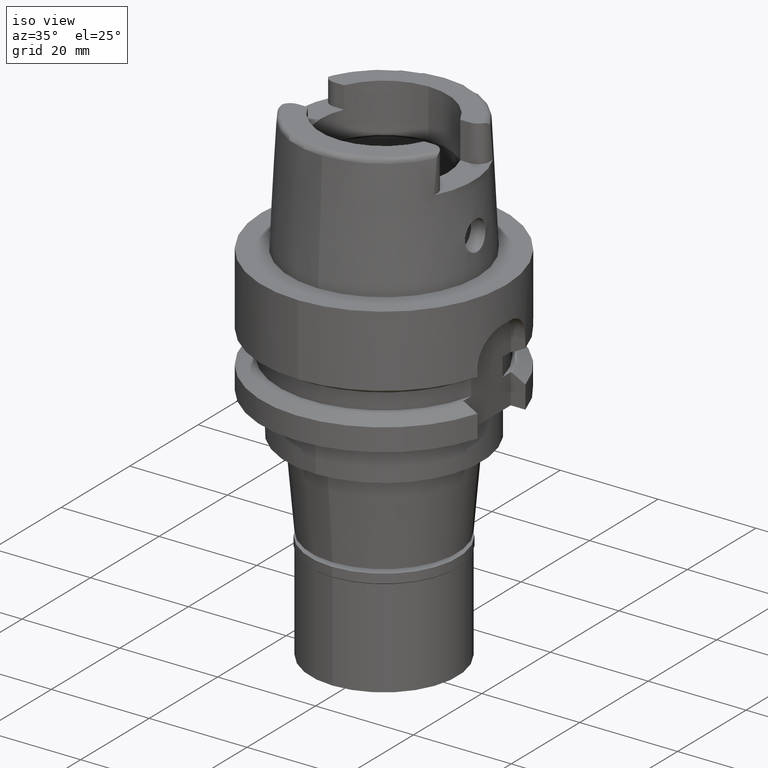
[diagram: clean part render]
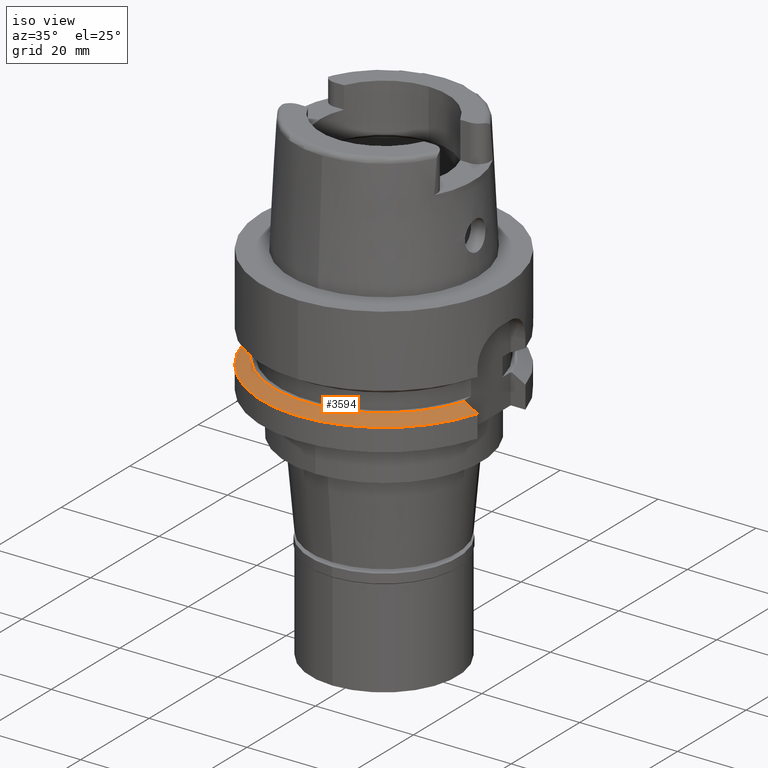
[diagram: same view with one face highlighted and labeled with its STEP entity id]
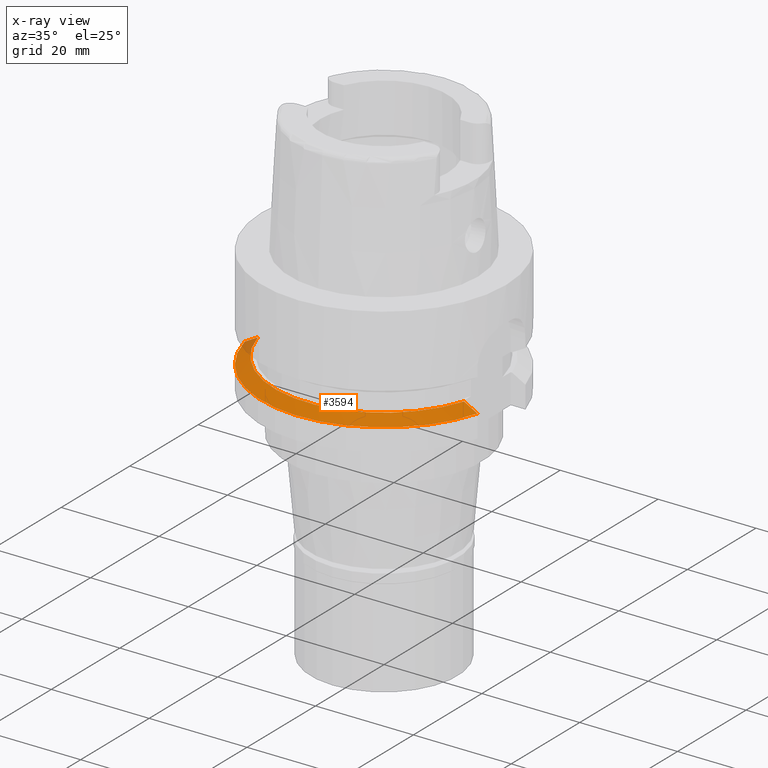
[diagram: x-ray of the same camera — body ghosted, the highlighted face saturated]
A machine part, iso view. The second image highlights one B-rep face of the part: STEP entity #3594.
The next image is the same camera in x-ray: the body ghosted, the highlighted face saturated — about 3% of this face is hidden behind the body in this view.
In plain terms, the highlighted conical surface has half-angle 60 deg.
Its self-contained STEP definition (entity closure, byte-faithful):
#253 = CARTESIAN_POINT ( 'NONE',  ( -24.26932203504999919, -6.000000663250999899, -21.37750544506000239 ) ) ;
#392 = FACE_OUTER_BOUND ( 'NONE', #5372, .T. ) ;
#449 = CARTESIAN_POINT ( 'NONE',  ( 0.0000000000000000000, 0.0000000000000000000, -20.62624953738000144 ) ) ;
#582 = ORIENTED_EDGE ( 'NONE', *, *, #2476, .T. ) ;
#670 = CARTESIAN_POINT ( 'NONE',  ( -23.32437824998604725, -6.000001326012642799, -20.84788086845616562 ) ) ;
#966 = VERTEX_POINT ( 'NONE', #3979 ) ;
#1087 = CARTESIAN_POINT ( 'NONE',  ( 21.27562628029000180, -7.000000000000000000, -19.87500000000000000 ) ) ;
#1118 = AXIS2_PLACEMENT_3D ( 'NONE', #1558, #4953, #1148 ) ;
#1148 = DIRECTION ( 'NONE',  ( 0.9599999999999999645, -0.2800000000000000266, 0.0000000000000000000 ) ) ;
#1528 = CARTESIAN_POINT ( 'NONE',  ( -24.26932203504999919, -6.000000663250999899, -21.37750544506000239 ) ) ;
#1558 = CARTESIAN_POINT ( 'NONE',  ( 0.0000000000000000000, 0.0000000000000000000, -21.37749907476000288 ) ) ;
#1621 = VERTEX_POINT ( 'NONE', #3041 ) ;
#1651 = ORIENTED_EDGE ( 'NONE', *, *, #5339, .T. ) ;
#1654 = DIRECTION ( 'NONE',  ( 0.0000000000000000000, -1.000000000000000000, 0.0000000000000000000 ) ) ;
#1831 = DIRECTION ( 'NONE',  ( 0.0000000000000000000, -1.000000000000000000, 0.0000000000000000000 ) ) ;
#1873 = B_SPLINE_CURVE_WITH_KNOTS ( 'NONE', 3,
 ( #4850, #4470, #670, #253 ),
 .UNSPECIFIED., .F., .F.,
 ( 4, 4 ),
 ( 0.0000000000000000000, 1.000000000000000000 ),
 .UNSPECIFIED. ) ;
#1969 = EDGE_CURVE ( 'NONE', #966, #4923, #4753, .T. ) ;
#2197 = EDGE_CURVE ( 'NONE', #1621, #5309, #2776, .T. ) ;
#2476 = EDGE_CURVE ( 'NONE', #5309, #4923, #1873, .T. ) ;
#2499 = AXIS2_PLACEMENT_3D ( 'NONE', #449, #5127, #1654 ) ;
#2776 = CIRCLE ( 'NONE', #3209, 22.39759526418999869 ) ;
#3041 = CARTESIAN_POINT ( 'NONE',  ( 21.27562628029000180, -7.000000000000000000, -19.87500000000000000 ) ) ;
#3055 = ORIENTED_EDGE ( 'NONE', *, *, #2197, .T. ) ;
#3209 = AXIS2_PLACEMENT_3D ( 'NONE', #3975, #4002, #1831 ) ;
#3594 = ADVANCED_FACE ( 'NONE', ( #392 ), #4904, .T. ) ;
#3682 = ORIENTED_EDGE ( 'NONE', *, *, #1969, .F. ) ;
#3975 = CARTESIAN_POINT ( 'NONE',  ( 0.0000000000000000000, 0.0000000000000000000, -19.87500000000000000 ) ) ;
#3979 = CARTESIAN_POINT ( 'NONE',  ( 24.00000000000000000, -7.000000000000000000, -21.37749907476000288 ) ) ;
#3995 = CARTESIAN_POINT ( 'NONE',  ( 24.00000000000000000, -7.000000000000000000, -21.37749907476000288 ) ) ;
#4002 = DIRECTION ( 'NONE',  ( 0.0000000000000000000, 0.0000000000000000000, -1.000000000000000000 ) ) ;
#4062 = B_SPLINE_CURVE_WITH_KNOTS ( 'NONE', 3,
 ( #3995, #5218, #4483, #1087 ),
 .UNSPECIFIED., .F., .F.,
 ( 4, 4 ),
 ( 0.0000000000000000000, 1.000000000000000000 ),
 .UNSPECIFIED. ) ;
#4470 = CARTESIAN_POINT ( 'NONE',  ( -22.42760335566105923, -6.000000419346756431, -20.34704686087649605 ) ) ;
#4483 = CARTESIAN_POINT ( 'NONE',  ( 22.13540832040489192, -6.999997676590691498, -20.34652894261421707 ) ) ;
#4719 = CARTESIAN_POINT ( 'NONE',  ( -21.57897427796000045, -6.000000209420000452, -19.87500000000000000 ) ) ;
#4753 = CIRCLE ( 'NONE', #1118, 25.00000000000000000 ) ;
#4850 = CARTESIAN_POINT ( 'NONE',  ( -21.57897427796000045, -6.000000209420000452, -19.87500000000000000 ) ) ;
#4904 = CONICAL_SURFACE ( 'NONE', #2499, 23.69879763209999979, 1.047197551196400456 ) ;
#4923 = VERTEX_POINT ( 'NONE', #1528 ) ;
#4953 = DIRECTION ( 'NONE',  ( 0.0000000000000000000, 0.0000000000000000000, -1.000000000000000000 ) ) ;
#5127 = DIRECTION ( 'NONE',  ( 0.0000000000000000000, 0.0000000000000000000, -1.000000000000000000 ) ) ;
#5218 = CARTESIAN_POINT ( 'NONE',  ( 23.04351223388465542, -6.999999562235507788, -20.84735967210472651 ) ) ;
#5309 = VERTEX_POINT ( 'NONE', #4719 ) ;
#5339 = EDGE_CURVE ( 'NONE', #966, #1621, #4062, .T. ) ;
#5372 = EDGE_LOOP ( 'NONE', ( #582, #3682, #1651, #3055 ) ) ;